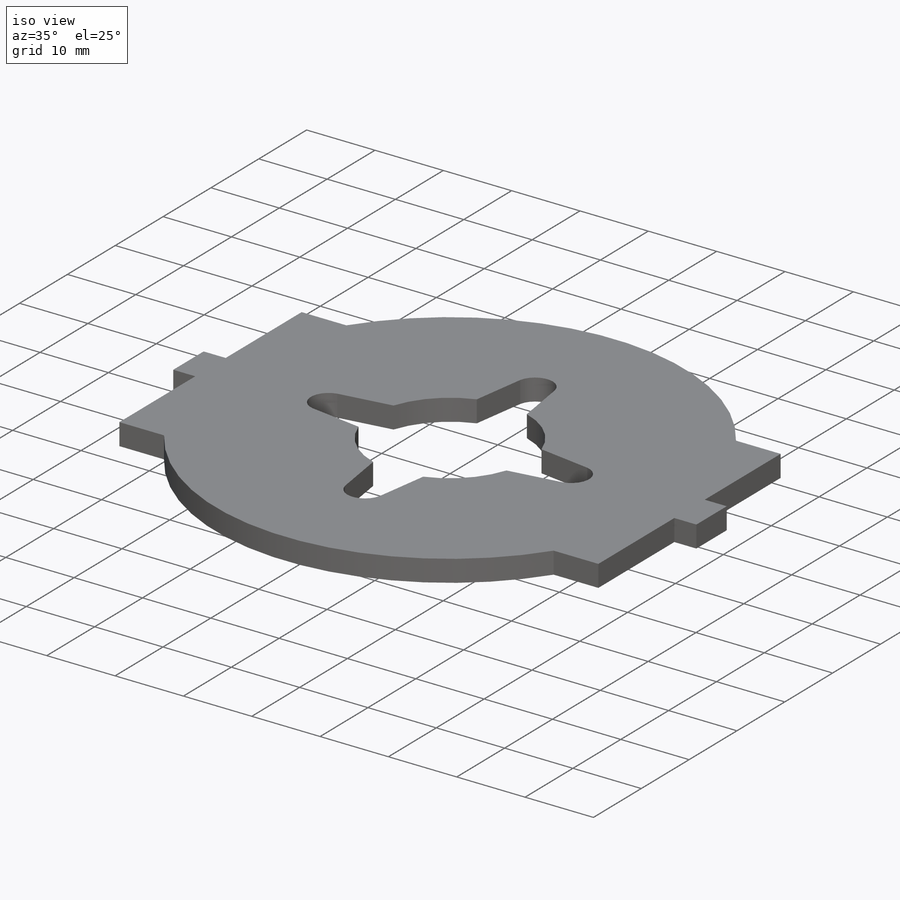
[diagram: iso view]
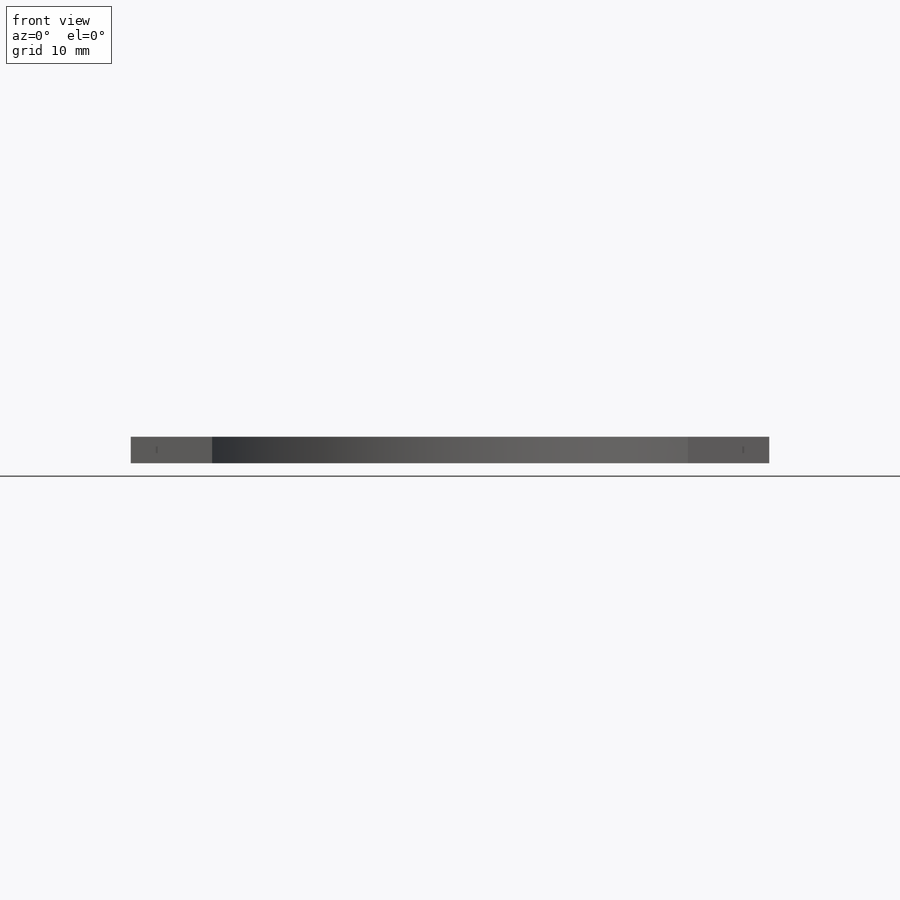
[diagram: front view]
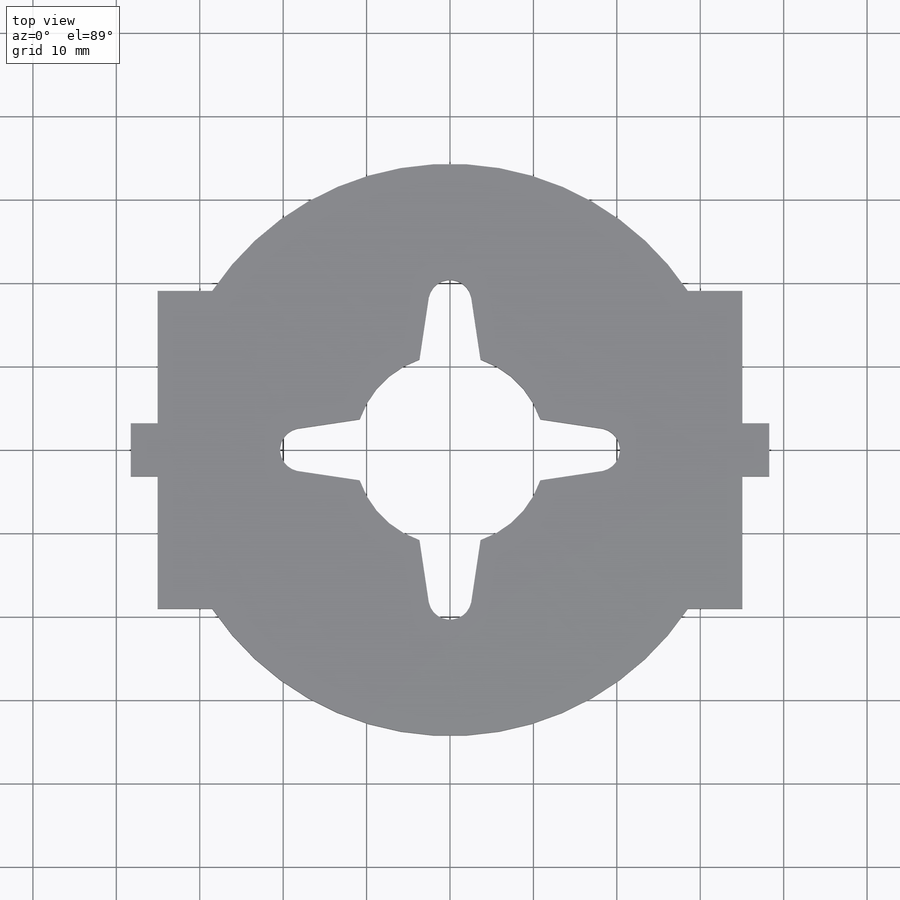
[diagram: top view]
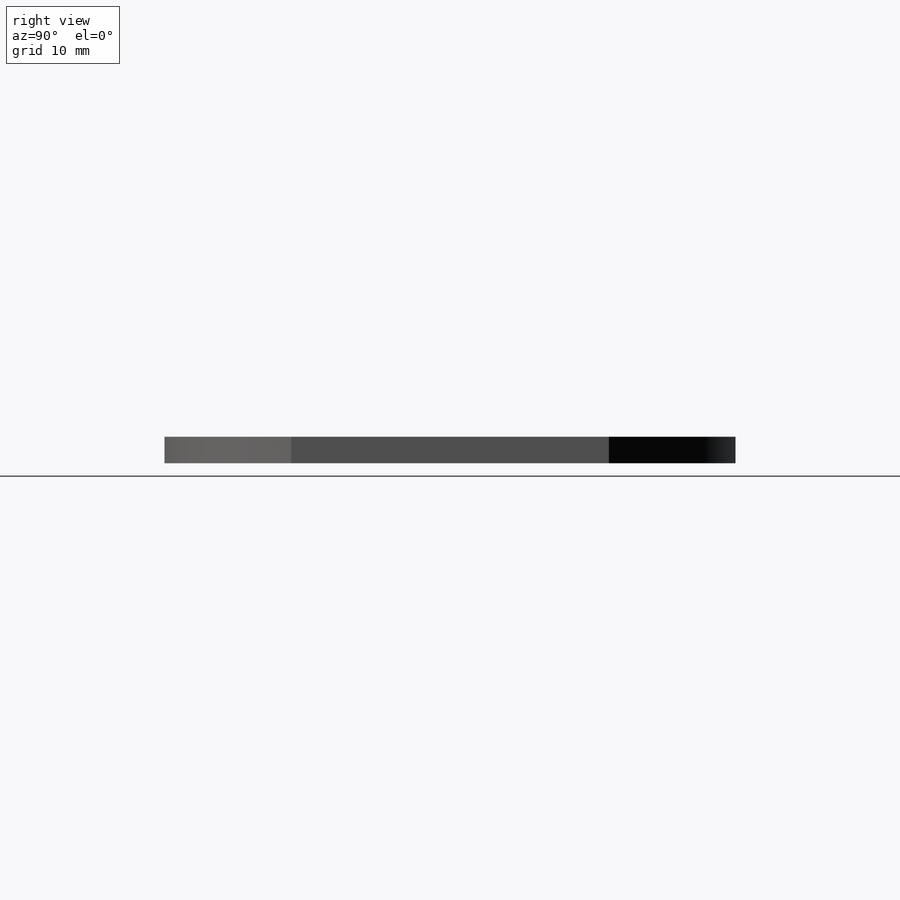
[diagram: right view]
SOLIDWORKS PART (.sldprt)
format: sldprt  version: not decoded by parser v0  size: 354,304 bytes
history: native  units: mm
features: sketch x5, extrude x3, cut_extrude x2, material x1, mirror x1, pattern_circular x1 (+16 scaffold rows collapsed)
feature tree (29):
  scaffold x16  (default folders/planes/origin — collapsed)
  material  "Material <not specified>"
  sketch  "Sketch1"  dims[D1=38.1mm D2=70.104mm]
  extrude  "rectangular base"  Depth=3.175mm
  sketch  "Sketch2"  dims[c1.D3=71.12mm c1.D2=68.58mm c1.D1=15.24mm c2.D2=16.51mm]
  extrude  "circular base add on"  Depth=3.175mm
  sketch  "Sketch3"  dims[c1.D1=20.32mm c1.D2=2.54mm c1.D3=2.54mm c1.D4=4.445mm c1.D5=5.588mm c1.D6=4.445mm c2.D6=135.0deg c2.D7=2.032mm c2.D8=4.445mm c3.D8=135.0deg c3.D9=2.032mm]
  cut_extrude  "hole for servo arm"  [1 undecoded]
  sketch  "Sketch4"  dims[D1=6.35mm D2=3.2258mm]
  extrude  "tab"  Depth=3.175mm
  mirror  "Mirror1"
  pattern_circular  "Circular pattern of servo arm hole"  Count=4 Angle=360deg
  sketch  "Sketch6"  dims[D1=22.86mm]
  cut_extrude  "Cut-Extrude2"  [1 undecoded]
decode coverage: 9 of 12 modeling features carry decoded parameters
note: 2 parameter values undecoded
note: suppression state not decoded; provenance and decode notes live in map.json
